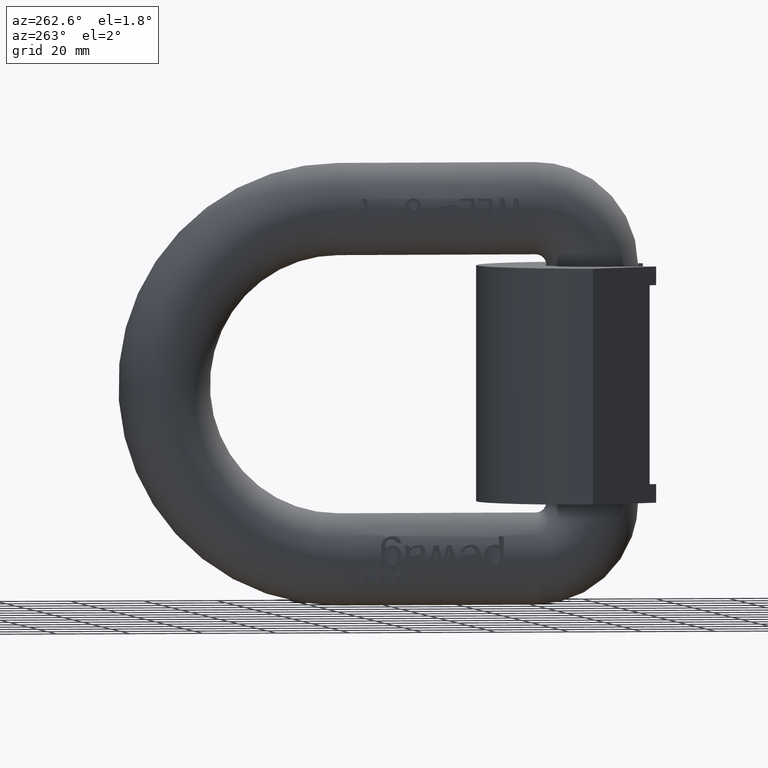
[diagram: clean part render]
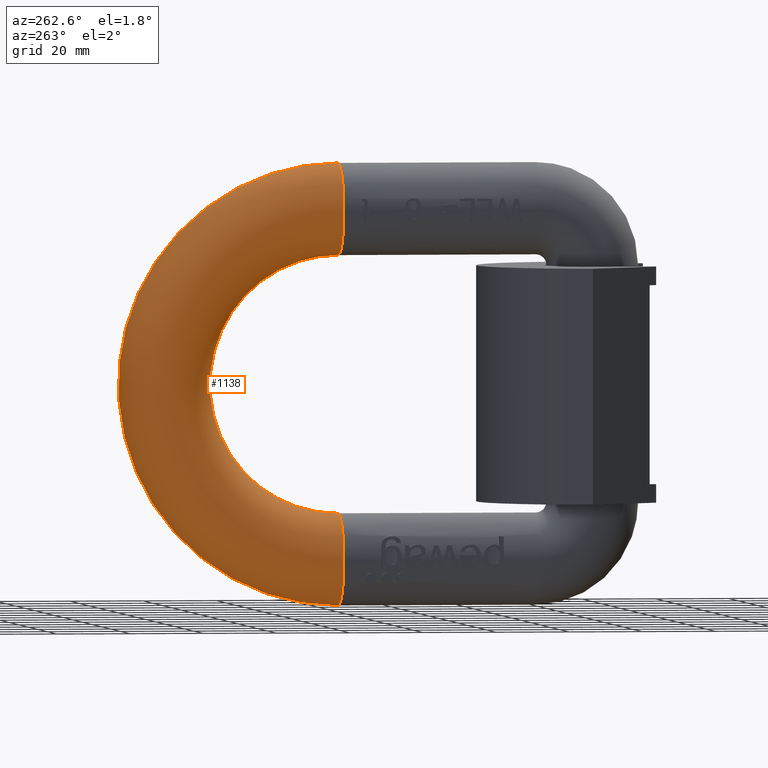
[diagram: same view with one face highlighted and labeled with its STEP entity id]
A machine part, auxiliary view. The second image highlights one B-rep face of the part: STEP entity #1138.
In plain terms, the highlighted toroidal blend (fillet) surface has major radius 47.5 mm and minor (blend) radius 12.5 mm.
Its self-contained STEP definition (entity closure, byte-faithful):
#182=TOROIDAL_SURFACE('',#6866,47.5,12.5);
#875=FACE_BOUND('',#1906,.T.);
#876=FACE_BOUND('',#1907,.T.);
#1138=ADVANCED_FACE('',(#875,#876),#182,.T.);
#1906=EDGE_LOOP('',(#2682));
#1907=EDGE_LOOP('',(#2683));
#2287=CIRCLE('',#6803,12.5);
#2292=CIRCLE('',#6820,12.5);
#2682=ORIENTED_EDGE('',*,*,#4966,.T.);
#2683=ORIENTED_EDGE('',*,*,#5033,.F.);
#4312=VERTEX_POINT('',#8677);
#4379=VERTEX_POINT('',#9429);
#4966=EDGE_CURVE('',#4312,#4312,#2287,.T.);
#5033=EDGE_CURVE('',#4379,#4379,#2292,.T.);
#6803=AXIS2_PLACEMENT_3D('',#8676,#7218,#7219);
#6820=AXIS2_PLACEMENT_3D('',#9428,#7262,#7263);
#6866=AXIS2_PLACEMENT_3D('',#10539,#7383,#7384);
#7218=DIRECTION('',(0.,1.,3.41201438250779E-15));
#7219=DIRECTION('',(0.,-3.33066907387547E-15,1.));
#7262=DIRECTION('',(0.,-1.,2.63163976207445E-16));
#7263=DIRECTION('',(0.,0.,-1.));
#7383=DIRECTION('',(1.,0.,0.));
#7384=DIRECTION('',(0.,0.,-1.));
#8676=CARTESIAN_POINT('',(0.,84.9999999999999,47.5));
#8677=CARTESIAN_POINT('',(0.,84.9999999999999,60.));
#9428=CARTESIAN_POINT('',(0.,85.,-47.5));
#9429=CARTESIAN_POINT('',(0.,85.,-60.));
#10539=CARTESIAN_POINT('',(0.,85.,0.));